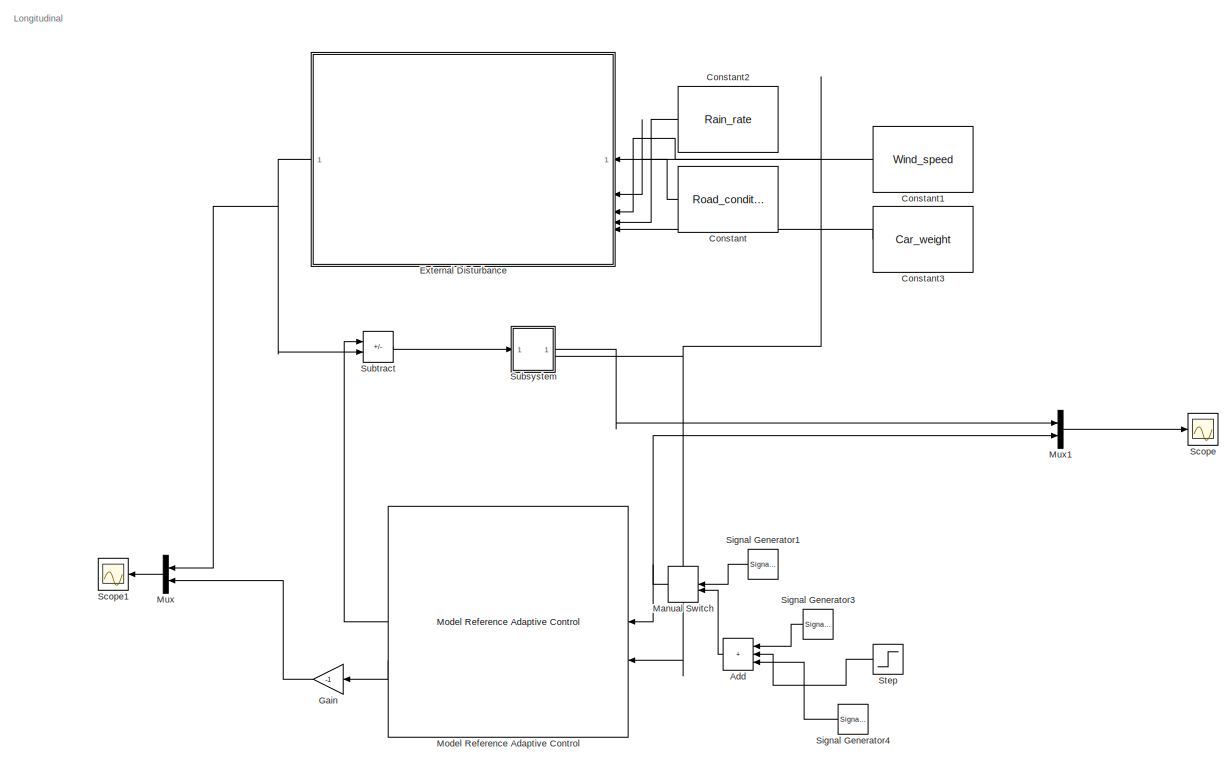
[diagram: root canvas - part 1/2, full width, top band]
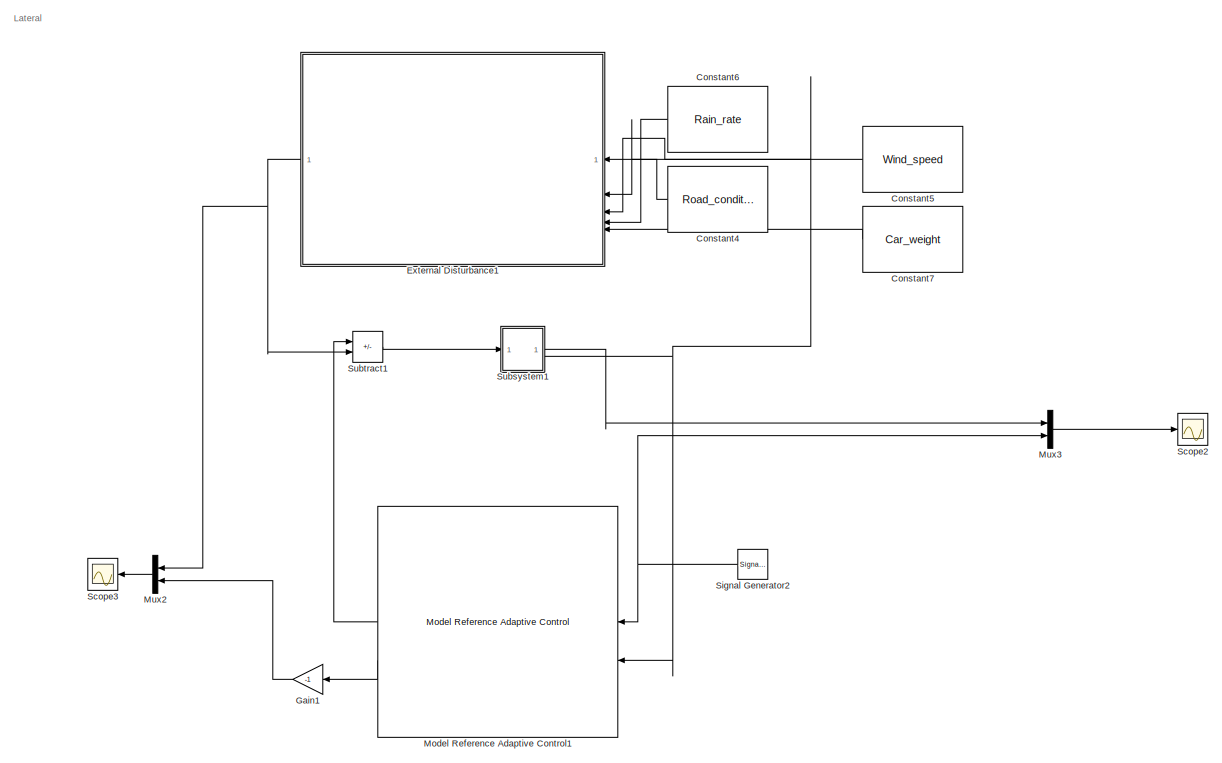
[diagram: root canvas - part 2/2, full width, bottom band]
MODEL slx_1aae9633149b
KIND model
CONFIG AbsTol = auto
CONFIG EnableMultiTasking = off
CONFIG FixedStep = auto
CONFIG MaxStep = auto
CONFIG MinStep = auto
CONFIG RelTol = 1e-3
CONFIG SampleTimeConstraint = Unconstrained
CONFIG SolverName = VariableStepAuto
CONFIG StartTime = 0.0
CONFIG StopTime = 100.0
BLOCK [Sum] Add
  IconShape = rectangular
  Inputs = +++
  NameLocation = top
BLOCK [Constant] Constant
  NameLocation = top
  Value = Road_condition
BLOCK [Constant] Constant1
  NameLocation = top
  Value = Wind_speed
BLOCK [Constant] Constant2
  NameLocation = top
  Value = Rain_rate
BLOCK [Constant] Constant3
  NameLocation = top
  Value = Car_weight
BLOCK [Constant] Constant4
  NameLocation = top
  Value = Road_condition
BLOCK [Constant] Constant5
  NameLocation = top
  Value = Wind_speed
BLOCK [Constant] Constant6
  NameLocation = top
  Value = Rain_rate
BLOCK [Constant] Constant7
  NameLocation = top
  Value = Car_weight
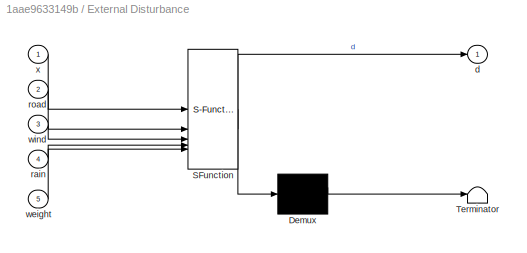
BLOCK [SubSystem] External Disturbance
  ErrorFcn = Stateflow.Translate.translate
  NameLocation = top
  PermitHierarchicalResolution = ExplicitOnly
  SFBlockType = MATLAB Function
  TreatAsAtomicUnit = on
BLOCK [Demux] External Disturbance/ Demux 
  Outputs = 1
BLOCK [S-Function] External Disturbance/ SFunction 
  EnableBusSupport = on
  FunctionName = sf_sfun
  PortCounts = [5 2]
  SFcnIsStateOwnerBlock = off
  SFunctionDeploymentMode = off
  Tag = Stateflow S-Function 2
BLOCK [Terminator] External Disturbance/ Terminator 
BLOCK [Outport] External Disturbance/d
BLOCK [Inport] External Disturbance/rain
  Port = 4
BLOCK [Inport] External Disturbance/road
  Port = 2
BLOCK [Inport] External Disturbance/weight
  Port = 5
BLOCK [Inport] External Disturbance/wind
  Port = 3
BLOCK [Inport] External Disturbance/x
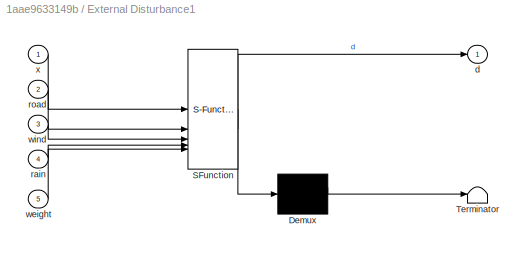
BLOCK [SubSystem] External Disturbance1
  ErrorFcn = Stateflow.Translate.translate
  NameLocation = top
  PermitHierarchicalResolution = ExplicitOnly
  SFBlockType = MATLAB Function
  TreatAsAtomicUnit = on
BLOCK [Demux] External Disturbance1/ Demux 
  Outputs = 1
BLOCK [S-Function] External Disturbance1/ SFunction 
  EnableBusSupport = on
  FunctionName = sf_sfun
  PortCounts = [5 2]
  SFcnIsStateOwnerBlock = off
  SFunctionDeploymentMode = off
  Tag = Stateflow S-Function 1
BLOCK [Terminator] External Disturbance1/ Terminator 
BLOCK [Outport] External Disturbance1/d
BLOCK [Inport] External Disturbance1/rain
  Port = 4
BLOCK [Inport] External Disturbance1/road
  Port = 2
BLOCK [Inport] External Disturbance1/weight
  Port = 5
BLOCK [Inport] External Disturbance1/wind
  Port = 3
BLOCK [Inport] External Disturbance1/x
BLOCK [Gain] Gain
  Gain = -1
  NameLocation = top
BLOCK [Gain] Gain1
  Gain = -1
  NameLocation = top
BLOCK [ManualSwitch] Manual Switch
  NameLocation = top
BLOCK [Reference] Model Reference Adaptive Control  REF=slctrl_adaptive/Model Reference Adaptive Control
  LibrarySourceBlock = slctrlblks/Adaptive Control/Model Reference Adaptive Control
  NameLocation = top
  SourceBlock = slctrl_adaptive/Model Reference Adaptive Control
  SourceType = Model Reference Adaptive Control
BLOCK [Reference] Model Reference Adaptive Control1  REF=slctrl_adaptive/Model Reference Adaptive Control
  LibrarySourceBlock = slctrlblks/Adaptive Control/Model Reference Adaptive Control
  NameLocation = top
  SourceBlock = slctrl_adaptive/Model Reference Adaptive Control
  SourceType = Model Reference Adaptive Control
BLOCK [Mux] Mux
  DisplayOption = bar
  Inputs = 2
  NameLocation = top
BLOCK [Mux] Mux1
  DisplayOption = bar
  Inputs = 2
BLOCK [Mux] Mux2
  DisplayOption = bar
  Inputs = 2
  NameLocation = top
BLOCK [Mux] Mux3
  DisplayOption = bar
  Inputs = 2
BLOCK [Scope] Scope
  Floating = off
  NumInputPorts = 1
  ScopeSpecificationString = Simulink.scopes.TimeScopeBlockCfg('CurrentConfiguration', extmgr.ConfigurationSet(extmgr.Configuration('Core','General UI',true),extmgr.Configuration('Core','Source UI',true),extmgr.Configuration('Sources','WiredSimulink',true),extmgr.Configuration('Visuals','Time Domain',true,'SerializedDisplays',{struct('MinYLimReal','-2','MaxYLimReal','2','YLabelReal','','MinYLimMag','0.00000','MaxYLimMag','1.2...<+1743ch>
BLOCK [Scope] Scope1
  Floating = off
  NameLocation = top
  NumInputPorts = 1
  ScopeSpecificationString = Simulink.scopes.TimeScopeBlockCfg('CurrentConfiguration', extmgr.ConfigurationSet(extmgr.Configuration('Core','General UI',true),extmgr.Configuration('Core','Source UI',true),extmgr.Configuration('Sources','WiredSimulink',true,'DataLoggingVariableName','ScopeData1'),extmgr.Configuration('Visuals','Time Domain',true,'SerializedDisplays',{struct('MinYLimReal','-106.32962','MaxYLimReal','956.9666','Y...<+1396ch>
BLOCK [Scope] Scope2
  Floating = off
  NumInputPorts = 1
  ScopeSpecificationString = Simulink.scopes.TimeScopeBlockCfg('CurrentConfiguration', extmgr.ConfigurationSet(extmgr.Configuration('Core','General UI',true),extmgr.Configuration('Core','Source UI',true),extmgr.Configuration('Sources','WiredSimulink',true,'DataLoggingVariableName','ScopeData2'),extmgr.Configuration('Visuals','Time Domain',true,'SerializedDisplays',{struct('MinYLimReal','-10','MaxYLimReal','10','YLabelReal',''...<+1419ch>
BLOCK [Scope] Scope3
  Floating = off
  NameLocation = top
  NumInputPorts = 1
  ScopeSpecificationString = Simulink.scopes.TimeScopeBlockCfg('CurrentConfiguration', extmgr.ConfigurationSet(extmgr.Configuration('Core','General UI',true),extmgr.Configuration('Core','Source UI',true),extmgr.Configuration('Sources','WiredSimulink',true,'DataLoggingVariableName','ScopeData3'),extmgr.Configuration('Visuals','Time Domain',true,'SerializedDisplays',{struct('MinYLimReal','-279.84145','MaxYLimReal','2518.57306',...<+1406ch>
BLOCK [SignalGenerator] Signal Generator1
  Frequency = 0.5
  NameLocation = top
  Units = rad/sec
BLOCK [SignalGenerator] Signal Generator2
  NameLocation = top
  Units = rad/sec
BLOCK [SignalGenerator] Signal Generator3
  Frequency = 0.5
  NameLocation = top
  Units = rad/sec
BLOCK [SignalGenerator] Signal Generator4
  Frequency = 2
  NameLocation = top
  Units = rad/sec
BLOCK [Step] Step
  NameLocation = top
  SampleTime = 0
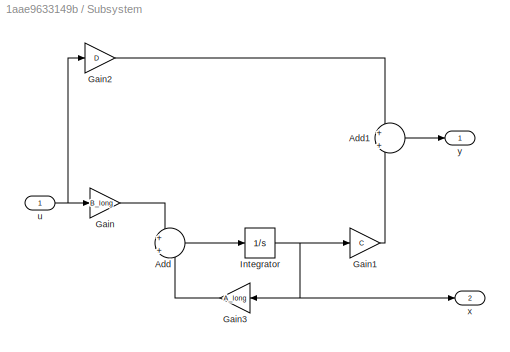
BLOCK [SubSystem] Subsystem
BLOCK [Sum] Subsystem/Add
  Inputs = +|+
BLOCK [Sum] Subsystem/Add1
  Inputs = +|+
BLOCK [Gain] Subsystem/Gain
  Gain = B_long
  Multiplication = Matrix(K*u)
BLOCK [Gain] Subsystem/Gain1
  Gain = C
  Multiplication = Matrix(K*u)
BLOCK [Gain] Subsystem/Gain2
  Gain = D
BLOCK [Gain] Subsystem/Gain3
  Gain = A_long
  Multiplication = Matrix(K*u)
  NameLocation = top
BLOCK [Integrator] Subsystem/Integrator
BLOCK [Inport] Subsystem/u
BLOCK [Outport] Subsystem/x
  Port = 2
BLOCK [Outport] Subsystem/y
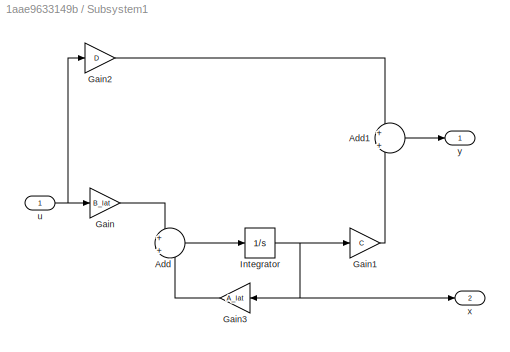
BLOCK [SubSystem] Subsystem1
BLOCK [Sum] Subsystem1/Add
  Inputs = +|+
BLOCK [Sum] Subsystem1/Add1
  Inputs = +|+
BLOCK [Gain] Subsystem1/Gain
  Gain = B_lat
  Multiplication = Matrix(K*u)
BLOCK [Gain] Subsystem1/Gain1
  Gain = C
  Multiplication = Matrix(K*u)
BLOCK [Gain] Subsystem1/Gain2
  Gain = D
BLOCK [Gain] Subsystem1/Gain3
  Gain = A_lat
  Multiplication = Matrix(K*u)
  NameLocation = top
BLOCK [Integrator] Subsystem1/Integrator
BLOCK [Inport] Subsystem1/u
BLOCK [Outport] Subsystem1/x
  Port = 2
BLOCK [Outport] Subsystem1/y
BLOCK [Sum] Subtract
  IconShape = rectangular
  Inputs = +-
BLOCK [Sum] Subtract1
  IconShape = rectangular
  Inputs = +-
ANNOTATION (root): Lateral
ANNOTATION (root): Longitudinal
LINE Add:1 -> Manual Switch:2
LINE Constant1:1 -> External Disturbance:3
LINE Constant2:1 -> External Disturbance:4
LINE Constant3:1 -> External Disturbance:5
LINE Constant4:1 -> External Disturbance1:2
LINE Constant5:1 -> External Disturbance1:3
LINE Constant6:1 -> External Disturbance1:4
LINE Constant7:1 -> External Disturbance1:5
LINE Constant:1 -> External Disturbance:2
NET External Disturbance1:1 -> Mux2:1, Subtract1:2
NET External Disturbance:1 -> Mux:1, Subtract:2
LINE Gain1:1 -> Mux2:2
LINE Gain:1 -> Mux:2
NET Manual Switch:1 -> Model Reference Adaptive Control:1, Mux1:2
LINE Model Reference Adaptive Control1:1 -> Subtract1:1
LINE Model Reference Adaptive Control1:2 -> Gain1:1
LINE Model Reference Adaptive Control:1 -> Subtract:1
LINE Model Reference Adaptive Control:2 -> Gain:1
LINE Mux1:1 -> Scope:1
LINE Mux2:1 -> Scope3:1
LINE Mux3:1 -> Scope2:1
LINE Mux:1 -> Scope1:1
LINE Signal Generator1:1 -> Manual Switch:1
NET Signal Generator2:1 -> Model Reference Adaptive Control1:1, Mux3:2
LINE Signal Generator3:1 -> Add:1
LINE Signal Generator4:1 -> Add:3
LINE Step:1 -> Add:2
LINE Subsystem/Add1:1 -> Subsystem/y:1
LINE Subsystem/Add:1 -> Subsystem/Integrator:1
LINE Subsystem/Gain1:1 -> Subsystem/Add1:2
LINE Subsystem/Gain2:1 -> Subsystem/Add1:1
LINE Subsystem/Gain3:1 -> Subsystem/Add:2
LINE Subsystem/Gain:1 -> Subsystem/Add:1
NET Subsystem/Integrator:1 -> Subsystem/Gain1:1, Subsystem/Gain3:1, Subsystem/x:1
NET Subsystem/u:1 -> Subsystem/Gain2:1, Subsystem/Gain:1
LINE Subsystem1/Add1:1 -> Subsystem1/y:1
LINE Subsystem1/Add:1 -> Subsystem1/Integrator:1
LINE Subsystem1/Gain1:1 -> Subsystem1/Add1:2
LINE Subsystem1/Gain2:1 -> Subsystem1/Add1:1
LINE Subsystem1/Gain3:1 -> Subsystem1/Add:2
LINE Subsystem1/Gain:1 -> Subsystem1/Add:1
NET Subsystem1/Integrator:1 -> Subsystem1/Gain1:1, Subsystem1/Gain3:1, Subsystem1/x:1
NET Subsystem1/u:1 -> Subsystem1/Gain2:1, Subsystem1/Gain:1
LINE Subsystem1:1 -> Mux3:1
NET Subsystem1:2 -> External Disturbance1:1, Model Reference Adaptive Control1:2
LINE Subsystem:1 -> Mux1:1
NET Subsystem:2 -> External Disturbance:1, Model Reference Adaptive Control:2
LINE Subtract1:1 -> Subsystem1:1
LINE Subtract:1 -> Subsystem:1
note: NET lines group one-source signal fan-out (src -> all destinations, sorted); 1:1 wires keep LINE
CHART External Disturbance1 states=1 transitions=1
  STATE_LABEL 'eML_blk_kernel()'
  STATE_LABEL 'SCRIPT:\nfunction d = external_disturbance(x, road, wind, rain, weight)\n% x: scalar longitudinal speed\n% road, wind, rain, weight: scalar environment inputs\n\n% Environmental weights (tunable)\nalpha = 0.05;  % road condition impact\nbeta  = 2;  % wind effect\ngamma = 30;  % rain effect\ndelta = 20; % car weight effect\n\nv = x(1);  % speed\n\n% Disturbance based on environment and speed\nd_long = ...\n    al...<+197ch>'
CHART External Disturbance states=1 transitions=1
  STATE_LABEL 'eML_blk_kernel()'
  STATE_LABEL 'SCRIPT:\nfunction d = external_disturbance(x, road, wind, rain, weight)\n% x: scalar longitudinal speed\n% road, wind, rain, weight: scalar environment inputs\n\n% Environmental weights (tunable)\nalpha = 0.5;  % road condition impact\nbeta  = 15;  % wind effect\ngamma = 3;  % rain effect\ndelta = 20; % car weight effect\n\nv = x(1);  % speed\n\n% Disturbance based on environment and speed\nd_long = ...\n    alp...<+196ch>'
CHART  states=0 transitions=0
CHART  states=0 transitions=0
